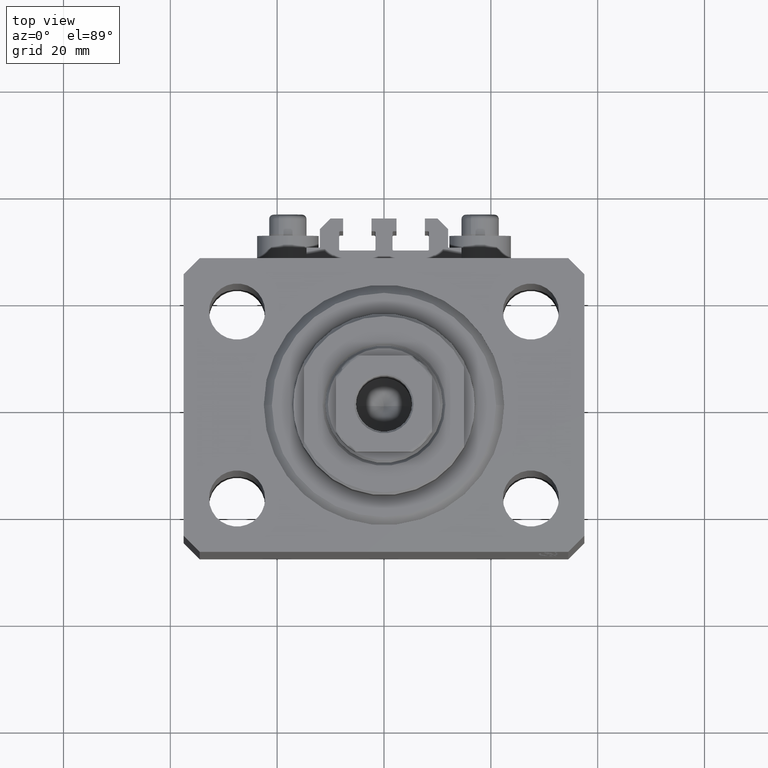
[diagram: clean part render]
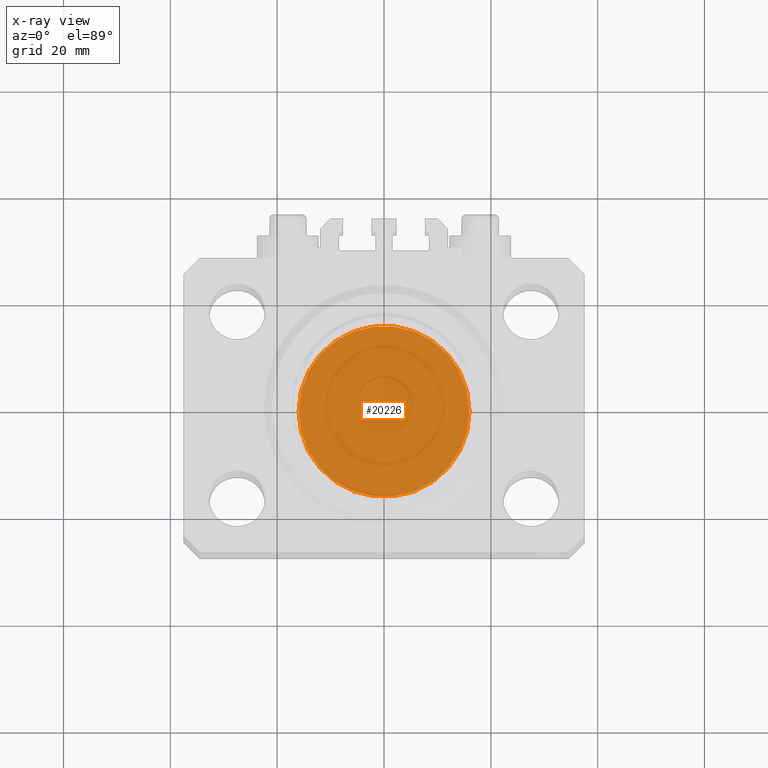
[diagram: x-ray — body ghosted, one internal face saturated and labeled with its STEP entity id]
A machine part, top view, then the same camera in x-ray: the body is ghosted and one INTERNAL B-rep face — a face not visible from any outside direction — is saturated and labeled: STEP entity #20226.
In plain terms, the highlighted planar face has unit normal (0, 0, 1).
Its self-contained STEP definition (entity closure, byte-faithful):
#1251 = CARTESIAN_POINT ( 'NONE',  ( 16.00000000000000000, 1.959434878635765131E-15, 0.000000000000000000 ) ) ;
#4767 = DIRECTION ( 'NONE',  ( 1.000000000000000000, 0.000000000000000000, -0.000000000000000000 ) ) ;
#5285 = AXIS2_PLACEMENT_3D ( 'NONE', #38640, #20605, #5734 ) ;
#5734 = DIRECTION ( 'NONE',  ( 1.000000000000000000, 0.000000000000000000, 0.000000000000000000 ) ) ;
#8059 = ORIENTED_EDGE ( 'NONE', *, *, #19586, .F. ) ;
#8366 = PLANE ( 'NONE',  #18268 ) ;
#8844 = DIRECTION ( 'NONE',  ( 0.000000000000000000, 0.000000000000000000, 1.000000000000000000 ) ) ;
#16323 = VERTEX_POINT ( 'NONE', #1251 ) ;
#18241 = ORIENTED_EDGE ( 'NONE', *, *, #36944, .F. ) ;
#18268 = AXIS2_PLACEMENT_3D ( 'NONE', #23005, #8844, #4767 ) ;
#19586 = EDGE_CURVE ( 'NONE', #16323, #42492, #28225, .T. ) ;
#20226 = ADVANCED_FACE ( 'NONE', ( #26852 ), #8366, .F. ) ;
#20605 = DIRECTION ( 'NONE',  ( 0.000000000000000000, 0.000000000000000000, 1.000000000000000000 ) ) ;
#23005 = CARTESIAN_POINT ( 'NONE',  ( 0.000000000000000000, 0.000000000000000000, 0.000000000000000000 ) ) ;
#24428 = CARTESIAN_POINT ( 'NONE',  ( -16.00000000000000000, 0.000000000000000000, 0.000000000000000000 ) ) ;
#26852 = FACE_OUTER_BOUND ( 'NONE', #27843, .T. ) ;
#27843 = EDGE_LOOP ( 'NONE', ( #18241, #8059 ) ) ;
#28225 = CIRCLE ( 'NONE', #29762, 16.00000000000000000 ) ;
#29762 = AXIS2_PLACEMENT_3D ( 'NONE', #37784, #45210, #46615 ) ;
#34445 = CIRCLE ( 'NONE', #5285, 16.00000000000000000 ) ;
#36944 = EDGE_CURVE ( 'NONE', #42492, #16323, #34445, .T. ) ;
#37784 = CARTESIAN_POINT ( 'NONE',  ( 0.000000000000000000, 0.000000000000000000, 0.000000000000000000 ) ) ;
#38640 = CARTESIAN_POINT ( 'NONE',  ( 0.000000000000000000, 0.000000000000000000, 0.000000000000000000 ) ) ;
#42492 = VERTEX_POINT ( 'NONE', #24428 ) ;
#45210 = DIRECTION ( 'NONE',  ( 0.000000000000000000, 0.000000000000000000, 1.000000000000000000 ) ) ;
#46615 = DIRECTION ( 'NONE',  ( 1.000000000000000000, 0.000000000000000000, 0.000000000000000000 ) ) ;